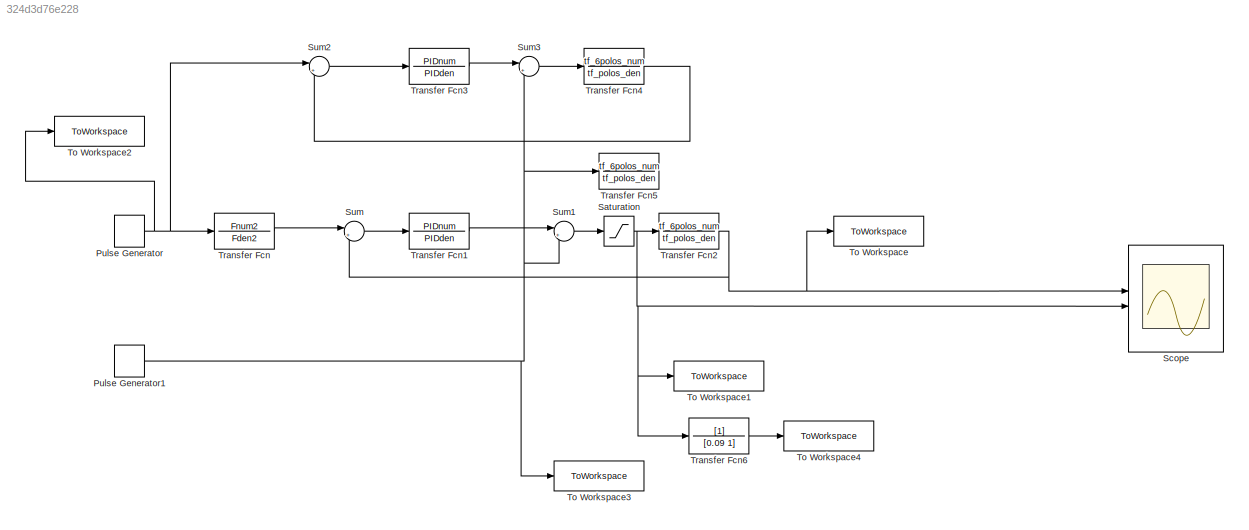
MODEL slx_324d3d76e228
KIND model
CONFIG AbsTol = auto
CONFIG EnableMultiTasking = off
CONFIG FixedStep = 0.01
CONFIG MaxStep = auto
CONFIG MinStep = auto
CONFIG RelTol = 1e-3
CONFIG SampleTimeConstraint = Unconstrained
CONFIG Solver = FixedStepAuto
CONFIG SolverName = FixedStepAuto
CONFIG StartTime = 0.0
CONFIG StopTime = 15.0
BLOCK [DiscretePulseGenerator] Pulse Generator
  Amplitude = 3
  Period = 20
  PhaseDelay = 1
  Ports = [0, 1]
  PulseType = Time based
  PulseWidth = 50
BLOCK [DiscretePulseGenerator] Pulse Generator1
  Amplitude = -1
  Period = 100
  PhaseDelay = 6
  Ports = [0, 1]
  PulseType = Time based
  PulseWidth = 50
BLOCK [Saturate] Saturation
  LowerLimit = -1
  UpperLimit = 4
BLOCK [Scope] Scope
  Floating = off
  NumInputPorts = 6
  Ports = [6]
  ScopeSpecificationString = Simulink.scopes.TimeScopeBlockCfg('CurrentConfiguration', extmgr.ConfigurationSet(extmgr.Configuration('Core','General UI',true,'FigureColor',[1 1 1]),extmgr.Configuration('Core','Source UI',true),extmgr.Configuration('Sources','WiredSimulink',true),extmgr.Configuration('Visuals','Time Domain',true,'SerializedDisplays',{struct('MinYLimReal','-1.625','MaxYLimReal','4.625','YLabelReal','','MinYLimMa...<+2272ch>
BLOCK [Sum] Sum
  Inputs = |+-
  Ports = [2, 1]
BLOCK [Sum] Sum1
  Inputs = |++
  Ports = [2, 1]
BLOCK [Sum] Sum2
  Inputs = |+-
  Ports = [2, 1]
BLOCK [Sum] Sum3
  Inputs = |++
  Ports = [2, 1]
BLOCK [ToWorkspace] To Workspace
  FixptAsFi = on
  MaxDataPoints = inf
  Ports = [1]
  SampleTime = -1
  SaveFormat = Timeseries
  VariableName = y_simu
BLOCK [ToWorkspace] To Workspace1
  FixptAsFi = on
  MaxDataPoints = inf
  Ports = [1]
  SampleTime = -1
  SaveFormat = Timeseries
  VariableName = u_simu
BLOCK [ToWorkspace] To Workspace2
  FixptAsFi = on
  MaxDataPoints = inf
  Ports = [1]
  SampleTime = -1
  SaveFormat = Timeseries
  VariableName = ref_simu
BLOCK [ToWorkspace] To Workspace3
  FixptAsFi = on
  MaxDataPoints = inf
  Ports = [1]
  SampleTime = -1
  SaveFormat = Timeseries
  VariableName = per_simu
BLOCK [ToWorkspace] To Workspace4
  FixptAsFi = on
  MaxDataPoints = inf
  Ports = [1]
  SampleTime = -1
  SaveFormat = Timeseries
  VariableName = uu_simu1
BLOCK [TransferFcn] Transfer Fcn
  Denominator = Fden2
  Numerator = Fnum2
BLOCK [TransferFcn] Transfer Fcn1
  Denominator = PIDden
  Numerator = PIDnum
BLOCK [TransferFcn] Transfer Fcn2
  Denominator = tf_polos_den
  Numerator = tf_6polos_num
BLOCK [TransferFcn] Transfer Fcn3
  Denominator = PIDden
  Numerator = PIDnum
BLOCK [TransferFcn] Transfer Fcn4
  Denominator = tf_polos_den
  Numerator = tf_6polos_num
BLOCK [TransferFcn] Transfer Fcn5
  Denominator = tf_polos_den
  Numerator = tf_6polos_num
BLOCK [TransferFcn] Transfer Fcn6
  Denominator = [0.09 1]
NET Pulse Generator1:1 -> Sum1:2, Sum3:2, To Workspace3:1, Transfer Fcn5:1
NET Pulse Generator:1 -> Sum2:1, To Workspace2:1, Transfer Fcn:1
NET Saturation:1 -> Scope:4, To Workspace1:1, Transfer Fcn2:1, Transfer Fcn6:1
LINE Sum1:1 -> Saturation:1
LINE Sum2:1 -> Transfer Fcn3:1
LINE Sum3:1 -> Transfer Fcn4:1
LINE Sum:1 -> Transfer Fcn1:1
LINE Transfer Fcn1:1 -> Sum1:1
NET Transfer Fcn2:1 -> Scope:3, Sum:2, To Workspace:1
LINE Transfer Fcn3:1 -> Sum3:1
LINE Transfer Fcn4:1 -> Sum2:2
LINE Transfer Fcn6:1 -> To Workspace4:1
LINE Transfer Fcn:1 -> Sum:1
note: NET lines group one-source signal fan-out (src -> all destinations, sorted); 1:1 wires keep LINE
